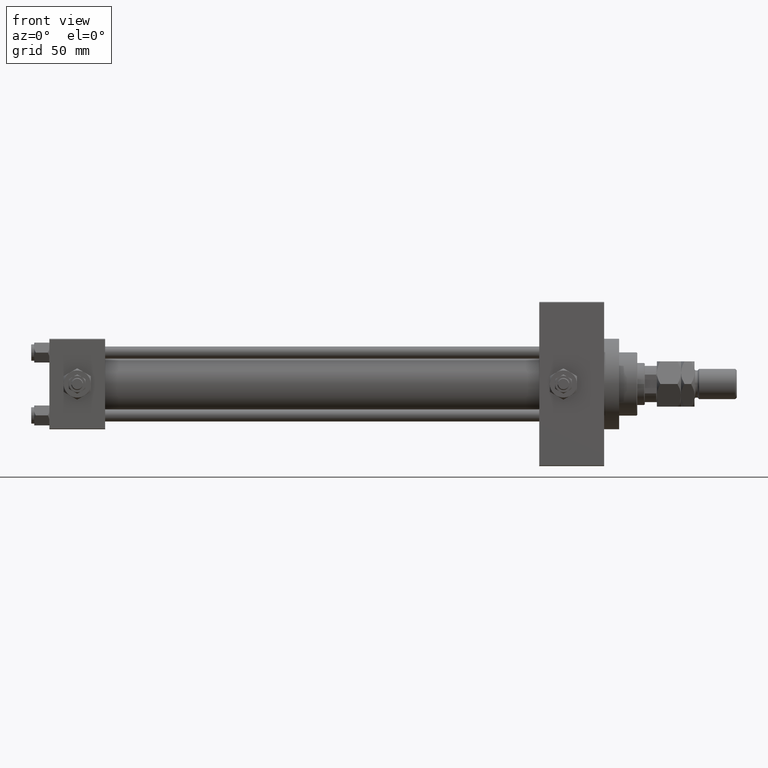
[diagram: clean part render]
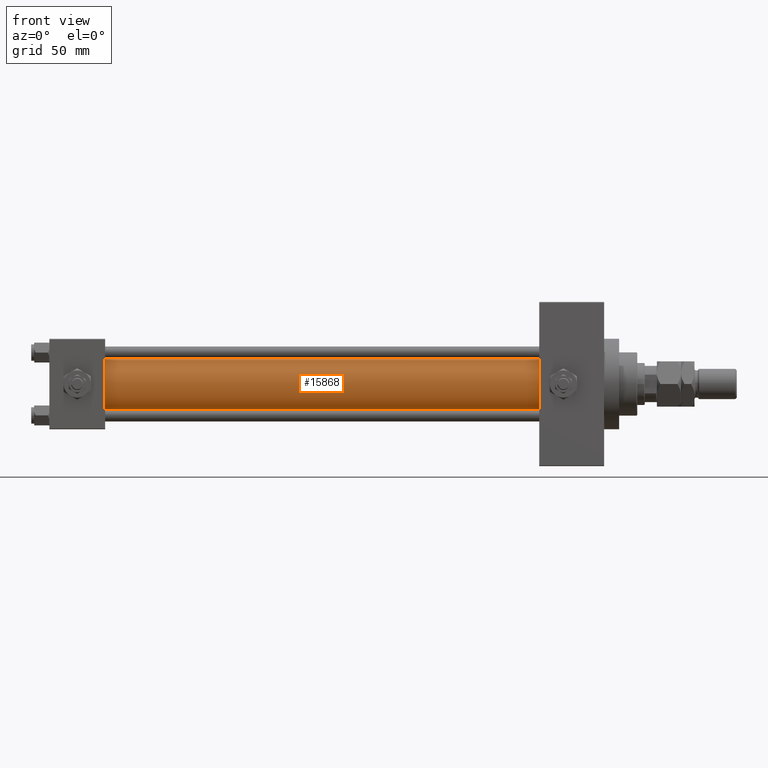
[diagram: same view with one face highlighted and labeled with its STEP entity id]
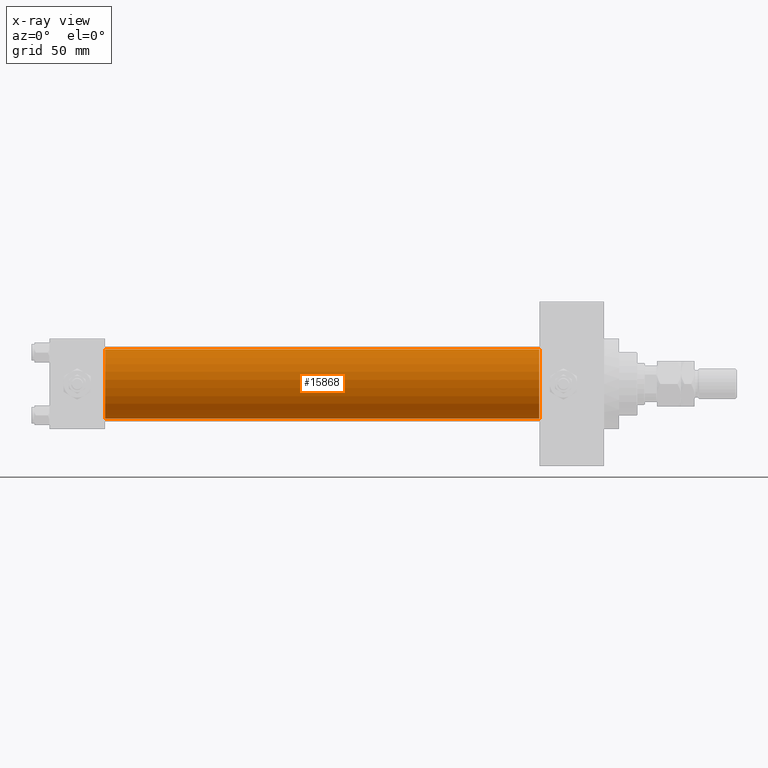
[diagram: x-ray of the same camera — body ghosted, the highlighted face saturated]
A machine part, front view. The second image highlights one B-rep face of the part: STEP entity #15868.
The next image is the same camera in x-ray: the body ghosted, the highlighted face saturated — about 0% of this face is hidden behind the body in this view.
In plain terms, the highlighted cylindrical surface (edge-blend (fillet) strip) has radius 23 mm, axis along (-1, -0, -0).
Its self-contained STEP definition (entity closure, byte-faithful):
#552 = EDGE_CURVE ( 'NONE', #43566, #44437, #31587, .T. ) ;
#823 = CARTESIAN_POINT ( 'NONE',  ( 36.99999999999997868, -2.602085213965210642E-15, 23.00000000000000000 ) ) ;
#1536 = CARTESIAN_POINT ( 'NONE',  ( 324.9999999999999432, 2.146024240737016609E-16, -23.00000000000000000 ) ) ;
#2104 = DIRECTION ( 'NONE',  ( 0.000000000000000000, 0.000000000000000000, 1.000000000000000000 ) ) ;
#4300 = EDGE_CURVE ( 'NONE', #11190, #44437, #9779, .T. ) ;
#5274 = DIRECTION ( 'NONE',  ( 0.000000000000000000, 0.000000000000000000, -1.000000000000000000 ) ) ;
#6037 = CARTESIAN_POINT ( 'NONE',  ( 324.9999999999999432, -2.602085213965210642E-15, 0.000000000000000000 ) ) ;
#6561 = EDGE_CURVE ( 'NONE', #19871, #43566, #32061, .T. ) ;
#6996 = EDGE_CURVE ( 'NONE', #19871, #11190, #21432, .T. ) ;
#9779 = CIRCLE ( 'NONE', #43471, 23.00000000000000000 ) ;
#11190 = VERTEX_POINT ( 'NONE', #823 ) ;
#12130 = AXIS2_PLACEMENT_3D ( 'NONE', #29327, #32940, #25468 ) ;
#12473 = ORIENTED_EDGE ( 'NONE', *, *, #6561, .F. ) ;
#12907 = VECTOR ( 'NONE', #43436, 1000.000000000000000 ) ;
#13536 = DIRECTION ( 'NONE',  ( 1.000000000000000000, 0.000000000000000000, 0.000000000000000000 ) ) ;
#15868 = ADVANCED_FACE ( 'NONE', ( #25966 ), #44795, .T. ) ;
#18911 = CARTESIAN_POINT ( 'NONE',  ( 324.9999999999999432, -2.602085213965210642E-15, 23.00000000000000000 ) ) ;
#19733 = VECTOR ( 'NONE', #40475, 1000.000000000000000 ) ;
#19871 = VERTEX_POINT ( 'NONE', #18911 ) ;
#21432 = LINE ( 'NONE', #32492, #19733 ) ;
#25468 = DIRECTION ( 'NONE',  ( 0.000000000000000000, 0.000000000000000000, 1.000000000000000000 ) ) ;
#25966 = FACE_OUTER_BOUND ( 'NONE', #47706, .T. ) ;
#27723 = CARTESIAN_POINT ( 'NONE',  ( 324.9999999999999432, 2.146024240737016609E-16, -23.00000000000000000 ) ) ;
#28342 = ORIENTED_EDGE ( 'NONE', *, *, #4300, .T. ) ;
#29327 = CARTESIAN_POINT ( 'NONE',  ( 324.9999999999999432, -2.602085213965210642E-15, 0.000000000000000000 ) ) ;
#30180 = ORIENTED_EDGE ( 'NONE', *, *, #6996, .T. ) ;
#31587 = LINE ( 'NONE', #27723, #12907 ) ;
#32061 = CIRCLE ( 'NONE', #48552, 23.00000000000000000 ) ;
#32492 = CARTESIAN_POINT ( 'NONE',  ( 324.9999999999999432, -2.602085213965210642E-15, 23.00000000000000000 ) ) ;
#32940 = DIRECTION ( 'NONE',  ( -1.000000000000000000, -0.000000000000000000, -0.000000000000000000 ) ) ;
#38113 = DIRECTION ( 'NONE',  ( 1.000000000000000000, -0.000000000000000000, 0.000000000000000000 ) ) ;
#40475 = DIRECTION ( 'NONE',  ( -1.000000000000000000, -0.000000000000000000, -0.000000000000000000 ) ) ;
#43436 = DIRECTION ( 'NONE',  ( -1.000000000000000000, -0.000000000000000000, -0.000000000000000000 ) ) ;
#43471 = AXIS2_PLACEMENT_3D ( 'NONE', #44845, #38113, #2104 ) ;
#43566 = VERTEX_POINT ( 'NONE', #1536 ) ;
#44437 = VERTEX_POINT ( 'NONE', #48782 ) ;
#44795 = CYLINDRICAL_SURFACE ( 'NONE', #12130, 23.00000000000000000 ) ;
#44845 = CARTESIAN_POINT ( 'NONE',  ( 36.99999999999997868, -2.602085213965210642E-15, 0.000000000000000000 ) ) ;
#45413 = ORIENTED_EDGE ( 'NONE', *, *, #552, .F. ) ;
#47706 = EDGE_LOOP ( 'NONE', ( #45413, #12473, #30180, #28342 ) ) ;
#48552 = AXIS2_PLACEMENT_3D ( 'NONE', #6037, #13536, #5274 ) ;
#48782 = CARTESIAN_POINT ( 'NONE',  ( 36.99999999999997868, 2.146024240737016609E-16, -23.00000000000000000 ) ) ;